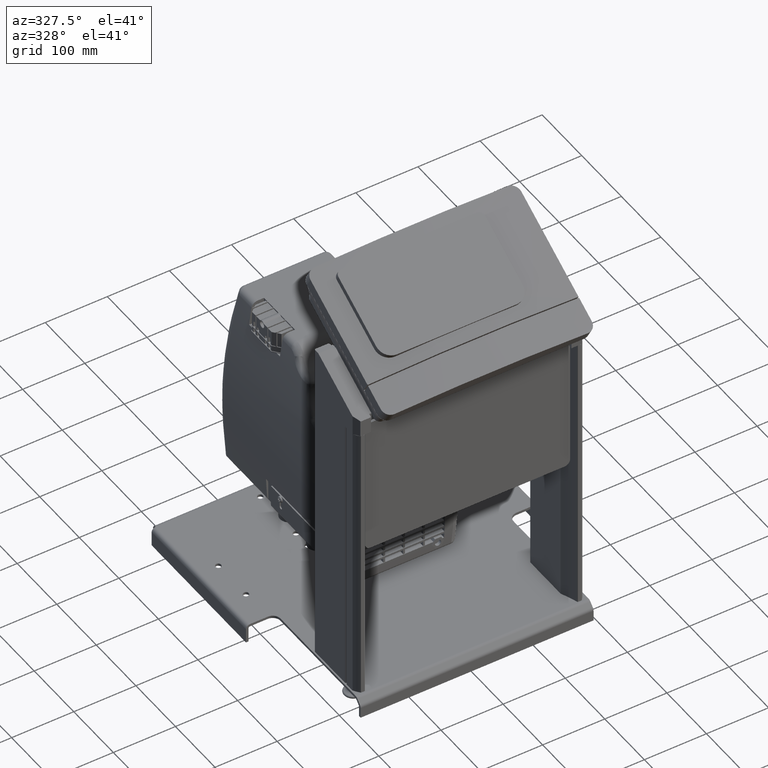
[diagram: clean part render]
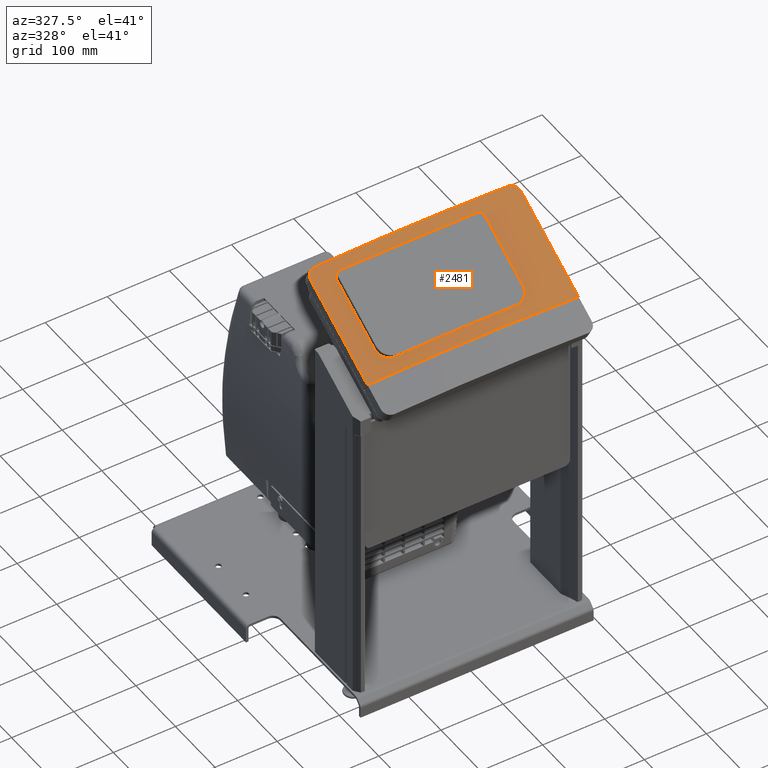
[diagram: same view with one face highlighted and labeled with its STEP entity id]
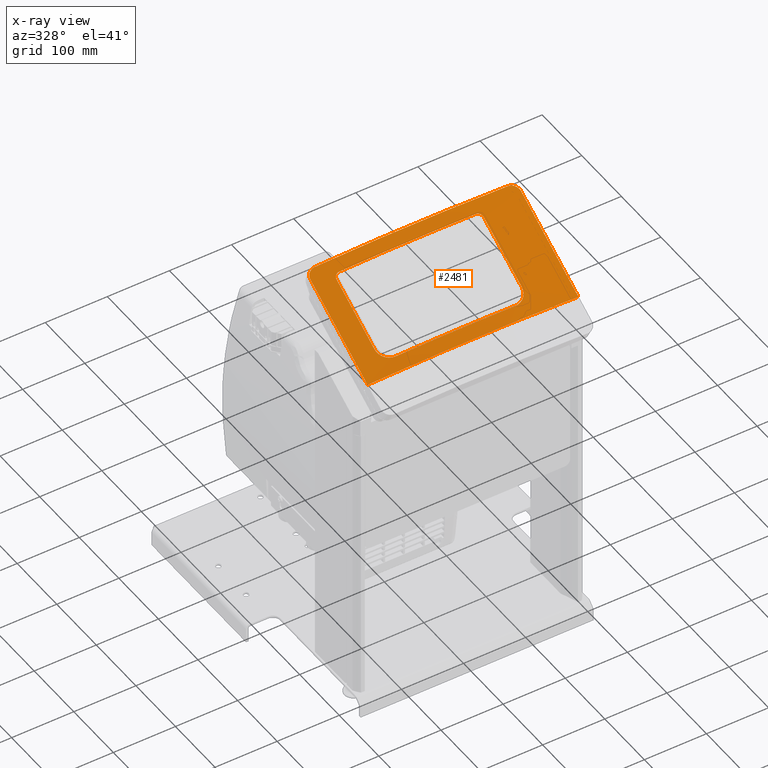
[diagram: x-ray of the same camera — body ghosted, the highlighted face saturated]
A machine part, auxiliary view. The second image highlights one B-rep face of the part: STEP entity #2481.
The next image is the same camera in x-ray: the body ghosted, the highlighted face saturated — about 0% of this face is hidden behind the body in this view.
In plain terms, the highlighted cylindrical surface (partial cylindrical patch) has radius 1496.25 mm, axis along (-0, 0.866, 0.5).
Its self-contained STEP definition (entity closure, byte-faithful):
#469=CARTESIAN_POINT('',(169.59679700803196,-223.95634935861835,582.03447660238101));
#470=VERTEX_POINT('',#469);
#479=CARTESIAN_POINT('',(-169.7866375998517,-223.95634935861813,582.03447660238055));
#480=VERTEX_POINT('',#479);
#481=CARTESIAN_POINT('',(-0.094920295907793,519.34122632166691,-705.39468961864361));
#482=DIRECTION('',(-6.162976E-032,0.866025403784438,0.500000000000001));
#483=DIRECTION('',(-1.224606E-016,-0.500000000000001,0.866025403784438));
#484=AXIS2_PLACEMENT_3D('',#481,#482,#483);
#485=CIRCLE('',#484,1496.2487837824006);
#486=EDGE_CURVE('',#480,#470,#485,.T.);
#581=CARTESIAN_POINT('',(-169.78663759984795,-79.76311962850923,665.28447660238078));
#582=VERTEX_POINT('',#581);
#583=CARTESIAN_POINT('',(-169.78663759984795,-223.95634935861835,582.03447660238089));
#584=DIRECTION('',(0.0,0.866025403784438,0.500000000000001));
#585=VECTOR('',#584,166.50000000000009);
#586=LINE('',#583,#585);
#587=EDGE_CURVE('',#480,#582,#586,.T.);
#645=CARTESIAN_POINT('',(169.59679700803196,-77.35979640391156,666.67203591305213));
#646=VERTEX_POINT('',#645);
#654=CARTESIAN_POINT('',(169.59679700803196,-223.95634935861835,582.03447660238101));
#655=DIRECTION('',(0.0,0.866025403784438,0.500000000000001));
#656=VECTOR('',#655,169.27511862134239);
#657=LINE('',#654,#656);
#658=EDGE_CURVE('',#470,#646,#657,.T.);
#2060=CARTESIAN_POINT('',(77.713362400148128,-210.01740882417971,598.89152339305167));
#2061=VERTEX_POINT('',#2060);
#2068=CARTESIAN_POINT('',(99.213362400148128,-190.76046984910545,608.53752668996935));
#2069=VERTEX_POINT('',#2068);
#2070=CARTESIAN_POINT('',(98.812246943362254,-187.19393670015143,610.6274121761071));
#2071=CARTESIAN_POINT('',(99.084207841762748,-188.38708963137287,609.91774082407983));
#2072=CARTESIAN_POINT('',(99.213362400148128,-189.59154548699007,609.212405485099));
#2073=CARTESIAN_POINT('',(99.213362400148128,-191.92939421122082,607.86264789483971));
#2074=CARTESIAN_POINT('',(99.084207841762748,-193.14246046077369,607.17222619562847));
#2075=CARTESIAN_POINT('',(98.540286044961761,-195.56480023038284,605.81529604958121));
#2076=CARTESIAN_POINT('',(98.125635538942845,-196.77408812742851,605.14876647876122));
#2077=CARTESIAN_POINT('',(97.029202699376299,-199.10285020829679,603.88707720962054));
#2078=CARTESIAN_POINT('',(96.346545752531426,-200.22417915568849,603.29089721205241));
#2079=CARTESIAN_POINT('',(94.769239446630706,-202.30723472493401,602.20491704650362));
#2080=CARTESIAN_POINT('',(93.874493145934537,-203.26889829462016,601.71513673977972));
#2081=CARTESIAN_POINT('',(91.966465503616348,-204.98184332287838,600.86339770408097));
#2082=CARTESIAN_POINT('',(90.887665986451282,-205.79140285739322,600.47251853205398));
#2083=CARTESIAN_POINT('',(88.538623838777937,-207.23040850769712,599.80480878309061));
#2084=CARTESIAN_POINT('',(87.268447371040509,-207.8599301783629,599.52790827831541));
#2085=CARTESIAN_POINT('',(84.619041693535848,-208.88698794317679,599.11114471517351));
#2086=CARTESIAN_POINT('',(83.237709997436639,-209.28533216887763,598.97093949776024));
#2087=CARTESIAN_POINT('',(80.460033462784907,-209.8330160854739,598.83065418054309));
#2088=CARTESIAN_POINT('',(79.063665325778572,-209.9822518698561,598.83062976192332));
#2089=CARTESIAN_POINT('',(76.36384498362446,-210.05254532671734,598.95238160064616));
#2090=CARTESIAN_POINT('',(74.96806422261119,-209.97613590003903,599.07824952615329));
#2091=CARTESIAN_POINT('',(73.579628156265642,-209.77477955619315,599.27354068439183));
#2092=B_SPLINE_CURVE_WITH_KNOTS('',3,(#2070,#2071,#2072,#2073,#2074,#2075,#2076,#2077,#2078,#2079,#2080,#2081,#2082,#2083,#2084,#2085,#2086,#2087,#2088,#2089,#2090,#2091),.UNSPECIFIED.,.F.,.U.,(4,2,2,2,2,2,2,2,2,2,4),(60.785706852603717,64.834979623381713,68.884252394159702,72.933525164937691,76.982797935715681,81.03207070649367,85.088467917127417,89.144865127761165,93.201262338394912,97.257659549028659,101.31169703956661),.UNSPECIFIED.);
#2093=EDGE_CURVE('',#2061,#2069,#2092,.F.);
#2110=CARTESIAN_POINT('',(99.213362400148128,-95.497675432817232,663.53752668996947));
#2111=VERTEX_POINT('',#2110);
#2112=CARTESIAN_POINT('',(99.213362400148128,-95.497675432817118,663.53752668996935));
#2113=DIRECTION('',(0.0,-0.866025403784438,-0.500000000000001));
#2114=VECTOR('',#2113,110.00000000000007);
#2115=LINE('',#2112,#2114);
#2116=EDGE_CURVE('',#2111,#2069,#2115,.T.);
#2151=CARTESIAN_POINT('',(-136.78663759985176,-189.28164586785215,605.97612841898763));
#2152=VERTEX_POINT('',#2151);
#2159=CARTESIAN_POINT('',(-115.28663759985182,-208.80928346280871,596.79898888524451));
#2160=VERTEX_POINT('',#2159);
#2161=CARTESIAN_POINT('',(-111.1527510983322,-208.61858852245132,597.27101873310369));
#2162=CARTESIAN_POINT('',(-112.54136605546188,-208.80253175076064,597.04547626580506));
#2163=CARTESIAN_POINT('',(-113.93719563006493,-208.86138283871151,596.88922765135032));
#2164=CARTESIAN_POINT('',(-116.63724660156134,-208.75713903003407,596.70867207834647));
#2165=CARTESIAN_POINT('',(-118.0339490538604,-208.59028191912057,596.67828778588091));
#2166=CARTESIAN_POINT('',(-120.81237442085302,-208.0073803951891,596.75814552318298));
#2167=CARTESIAN_POINT('',(-122.19412081466015,-207.59144015757852,596.86833101978414));
#2168=CARTESIAN_POINT('',(-124.84445182347821,-206.53035828050224,597.22763875429075));
#2169=CARTESIAN_POINT('',(-126.1151323303319,-205.8843840169684,597.47705684895914));
#2170=CARTESIAN_POINT('',(-128.46523218609144,-204.41451007005344,598.09416404804153));
#2171=CARTESIAN_POINT('',(-129.54458477987134,-203.59053407361534,598.46192559814244));
#2172=CARTESIAN_POINT('',(-131.45184170946311,-201.85307975627666,599.2723705310907));
#2173=CARTESIAN_POINT('',(-132.34559389131738,-200.88075691562517,599.74236555538891));
#2174=CARTESIAN_POINT('',(-133.92140202504157,-198.77896513040241,600.79340418857248));
#2175=CARTESIAN_POINT('',(-134.60355324197144,-197.64955704246881,601.37442666143033));
#2176=CARTESIAN_POINT('',(-135.6993004563912,-195.3078587392688,602.61173203276383));
#2177=CARTESIAN_POINT('',(-136.11377209405458,-194.09369713494516,603.26901936951435));
#2178=CARTESIAN_POINT('',(-136.65749914711643,-191.66501842412163,604.61378990423202));
#2179=CARTESIAN_POINT('',(-136.78663759985176,-190.4504883190948,605.30129691512252));
#2180=CARTESIAN_POINT('',(-136.78663759985176,-189.28164586785215,605.97612841898763));
#2181=CARTESIAN_POINT('',(-136.78663759985176,-188.11280341660995,606.65095992285285));
#2182=CARTESIAN_POINT('',(-136.65749914711643,-186.91013982738559,607.35902034202149));
#2183=CARTESIAN_POINT('',(-136.3856356205855,-185.720667427016,608.07447643894386));
#2184=B_SPLINE_CURVE_WITH_KNOTS('',3,(#2161,#2162,#2163,#2164,#2165,#2166,#2167,#2168,#2169,#2170,#2171,#2172,#2173,#2174,#2175,#2176,#2177,#2178,#2179,#2180,#2181,#2182,#2183),.UNSPECIFIED.,.F.,.U.,(4,2,2,2,2,2,2,2,2,3,4),(-36.511885750281706,-32.45150903286995,-28.387620797843255,-24.323732562816559,-20.259844327789864,-16.195956092763168,-12.146967069572383,-8.097978046381584,-4.048989023190785,0.0,4.048989023190778),.UNSPECIFIED.);
#2185=EDGE_CURVE('',#2152,#2160,#2184,.F.);
#2209=CARTESIAN_POINT('',(-0.094920295907793,537.09474709924734,-695.14468961864452));
#2210=DIRECTION('',(5.546678E-032,-0.866025403784438,-0.500000000000001));
#2211=DIRECTION('',(-1.224606E-016,-0.500000000000001,0.866025403784438));
#2212=AXIS2_PLACEMENT_3D('',#2209,#2210,#2211);
#2213=CIRCLE('',#2212,1496.2487837824006);
#2214=EDGE_CURVE('',#2061,#2160,#2213,.T.);
#2234=CARTESIAN_POINT('',(90.713362400148128,-88.407014194235217,668.25614116548616));
#2235=VERTEX_POINT('',#2234);
#2236=CARTESIAN_POINT('',(89.078851287834539,-88.593638479456786,668.26211431228796));
#2237=CARTESIAN_POINT('',(89.627840907629832,-88.484086506653966,668.2875164730566));
#2238=CARTESIAN_POINT('',(90.179741664271489,-88.423236988499639,668.28423986939288));
#2239=CARTESIAN_POINT('',(91.24712656840137,-88.390787039431871,668.22803490890442));
#2240=CARTESIAN_POINT('',(91.799134586344678,-88.418099516711891,668.17316970425998));
#2241=CARTESIAN_POINT('',(92.897260720210568,-88.570501861983757,668.00668863022156));
#2242=CARTESIAN_POINT('',(93.443387909868022,-88.69555180531097,667.8950960670677));
#2243=CARTESIAN_POINT('',(94.490913390646426,-89.038460369535869,667.62092655881349));
#2244=CARTESIAN_POINT('',(94.993142704063132,-89.256592299266231,667.45813378751598));
#2245=CARTESIAN_POINT('',(95.921985342321648,-89.767966021229768,667.09425838383004));
#2246=CARTESIAN_POINT('',(96.348572234587266,-90.06124454270298,666.89315989777083));
#2247=CARTESIAN_POINT('',(97.102915768552464,-90.690585406300215,666.4733270376372));
#2248=CARTESIAN_POINT('',(97.456597375653416,-91.048009255699071,666.24031633305856));
#2249=CARTESIAN_POINT('',(98.080096392204439,-91.831085542256233,665.74101681162369));
#2250=CARTESIAN_POINT('',(98.34995193982553,-92.256716166014712,665.47474140972804));
#2251=CARTESIAN_POINT('',(98.783376035368804,-93.148842000661034,664.92659937102349));
#2252=CARTESIAN_POINT('',(98.947290454607526,-93.616051464795191,664.64429639285197));
#2253=CARTESIAN_POINT('',(99.162306676631658,-94.55940936161528,664.08315985305728));
#2254=CARTESIAN_POINT('',(99.213362400148128,-95.035567445455172,663.80432486086772));
#2255=CARTESIAN_POINT('',(99.213362400148128,-95.497675432817232,663.53752668996947));
#2256=CARTESIAN_POINT('',(99.213362400148128,-95.959783420179519,663.27072851907144));
#2257=CARTESIAN_POINT('',(99.162306676631658,-96.439340648799543,662.99778101834329));
#2258=CARTESIAN_POINT('',(99.054798565619592,-96.918159372231457,662.72957920153874));
#2259=B_SPLINE_CURVE_WITH_KNOTS('',3,(#2236,#2237,#2238,#2239,#2240,#2241,#2242,#2243,#2244,#2245,#2246,#2247,#2248,#2249,#2250,#2251,#2252,#2253,#2254,#2255,#2256,#2257,#2258),.UNSPECIFIED.,.F.,.U.,(4,2,2,2,2,2,2,2,2,3,4),(-14.423973705738184,-12.820155058336674,-11.215905319141562,-9.611655579946458,-8.007405840751353,-6.403156101556242,-4.80236707616718,-3.201578050778117,-1.600789025389055,0.0,1.600789025389067),.UNSPECIFIED.);
#2260=EDGE_CURVE('',#2111,#2235,#2259,.F.);
#2277=CARTESIAN_POINT('',(-128.28663759985176,-87.035311845912474,665.88028300532983));
#2278=VERTEX_POINT('',#2277);
#2279=CARTESIAN_POINT('',(-0.094920295907793,658.33830362906917,-625.14468961864407));
#2280=DIRECTION('',(-5.546678E-032,0.866025403784438,0.500000000000001));
#2281=DIRECTION('',(-1.224606E-016,-0.500000000000001,0.866025403784438));
#2282=AXIS2_PLACEMENT_3D('',#2279,#2280,#2281);
#2283=CIRCLE('',#2282,1496.2487837824006);
#2284=EDGE_CURVE('',#2278,#2235,#2283,.T.);
#2318=CARTESIAN_POINT('',(-136.78663759985176,-94.01885145156416,660.97612841898774));
#2319=VERTEX_POINT('',#2318);
#2320=CARTESIAN_POINT('',(-136.62812488828706,-95.441106638363863,660.17177077381928));
#2321=CARTESIAN_POINT('',(-136.73559025644931,-94.961044291775579,660.4375641767466));
#2322=CARTESIAN_POINT('',(-136.78663759985176,-94.48091772721682,660.70935433035618));
#2323=CARTESIAN_POINT('',(-136.78663759985176,-94.01885145156416,660.97612841898774));
#2324=CARTESIAN_POINT('',(-136.78663759985176,-93.556785175911273,661.24290250761953));
#2325=CARTESIAN_POINT('',(-136.73559025644732,-93.081344716108106,661.52280923275407));
#2326=CARTESIAN_POINT('',(-136.5206595201268,-92.140914691332,662.08850820491875));
#2327=CARTESIAN_POINT('',(-136.3568222703766,-91.675914844016461,662.37430088893359));
#2328=CARTESIAN_POINT('',(-135.92368788702998,-90.78959800138864,662.93168021836027));
#2329=CARTESIAN_POINT('',(-135.65404443809359,-90.367568907275654,663.20371206251411));
#2330=CARTESIAN_POINT('',(-135.03117099178451,-89.592771045791778,663.71632130240562));
#2331=CARTESIAN_POINT('',(-134.67790359540516,-89.240024127787592,663.95688627832556));
#2332=CARTESIAN_POINT('',(-133.92385755957326,-88.61994691529253,664.3933017129209));
#2333=CARTESIAN_POINT('',(-133.4970145348974,-88.331707414473385,664.60393595825542));
#2334=CARTESIAN_POINT('',(-132.56768721444649,-87.831529450629887,664.98843379064544));
#2335=CARTESIAN_POINT('',(-132.06522970256719,-87.619553233686929,665.16231299997685));
#2336=CARTESIAN_POINT('',(-131.01730275863667,-87.289604223398328,665.45952464069228));
#2337=CARTESIAN_POINT('',(-130.47100489481892,-87.171369000023333,665.58309052918719));
#2338=CARTESIAN_POINT('',(-129.37259975168587,-87.032726194571296,665.77360329818157));
#2339=CARTESIAN_POINT('',(-128.82048339505138,-87.012358722860426,665.8405270300118));
#2340=CARTESIAN_POINT('',(-127.75299509951634,-87.058256228140408,665.92002384109708));
#2341=CARTESIAN_POINT('',(-127.20103081241524,-87.126061515914444,665.93534129645855));
#2342=CARTESIAN_POINT('',(-126.65193237641279,-87.242560588075776,665.92190268163392));
#2343=B_SPLINE_CURVE_WITH_KNOTS('',3,(#2320,#2321,#2322,#2323,#2324,#2325,#2326,#2327,#2328,#2329,#2330,#2331,#2332,#2333,#2334,#2335,#2336,#2337,#2338,#2339,#2340,#2341,#2342),.UNSPECIFIED.,.F.,.U.,(4,3,2,2,2,2,2,2,2,2,4),(-1.600644531789563,0.0,1.600644531789566,3.201289063579132,4.801933595368698,6.402578127158265,8.010025932952518,9.617473738746771,11.224921544541022,12.832369350335275,14.439205020778179),.UNSPECIFIED.);
#2344=EDGE_CURVE('',#2278,#2319,#2343,.F.);
#2368=CARTESIAN_POINT('',(-136.78663759985176,-189.28164586785209,605.97612841898751));
#2369=DIRECTION('',(0.0,0.866025403784438,0.500000000000001));
#2370=VECTOR('',#2369,109.99999999999987);
#2371=LINE('',#2368,#2370);
#2372=EDGE_CURVE('',#2152,#2319,#2371,.T.);
#2400=CARTESIAN_POINT('',(-155.7866375998517,-68.404443693139001,673.61067277561006));
#2401=VERTEX_POINT('',#2400);
#2402=CARTESIAN_POINT('',(-169.7866375998517,-79.763119628508775,665.28447660238032));
#2403=CARTESIAN_POINT('',(-169.7866375998517,-79.002121011907548,665.72383935852793));
#2404=CARTESIAN_POINT('',(-169.70256960766977,-78.220099448994233,666.18642997365976));
#2405=CARTESIAN_POINT('',(-169.34870348022014,-76.675466848068481,667.12479325616266));
#2406=CARTESIAN_POINT('',(-169.07898155079522,-75.912837608583004,667.60056469857318));
#2407=CARTESIAN_POINT('',(-168.36607928146668,-74.461508319852783,668.53185846502254));
#2408=CARTESIAN_POINT('',(-167.92232782217934,-73.771636410546307,668.98812547963189));
#2409=CARTESIAN_POINT('',(-166.89750871347042,-72.507392184678338,669.85119914601512));
#2410=CARTESIAN_POINT('',(-166.31638065725491,-71.933053862670477,670.25798386462134));
#2411=CARTESIAN_POINT('',(-165.07499976134199,-70.924599463075538,670.99984530395648));
#2412=CARTESIAN_POINT('',(-164.37157940176371,-70.456709600518934,671.359974168848));
#2413=CARTESIAN_POINT('',(-162.84018349606697,-69.647908691551947,672.0213411803079));
#2414=CARTESIAN_POINT('',(-162.01225240017152,-69.306932167847663,672.32260217515579));
#2415=CARTESIAN_POINT('',(-160.28559308862913,-68.780377385437305,672.84246977894861));
#2416=CARTESIAN_POINT('',(-159.38550523519621,-68.594380545320973,673.06148144976339));
#2417=CARTESIAN_POINT('',(-157.57579986238557,-68.383375855538361,673.40575712386863));
#2418=CARTESIAN_POINT('',(-156.66616721144896,-68.358434340219446,673.53098223872939));
#2419=CARTESIAN_POINT('',(-155.7866375998517,-68.404443693139001,673.61067277561006));
#2420=B_SPLINE_CURVE_WITH_KNOTS('',3,(#2402,#2403,#2404,#2405,#2406,#2407,#2408,#2409,#2410,#2411,#2412,#2413,#2414,#2415,#2416,#2417,#2418,#2419),.UNSPECIFIED.,.F.,.U.,(4,2,2,2,2,2,2,2,4),(84.608812298877979,87.24498883576446,89.881165372650955,92.517341909537436,95.153518446423931,97.806508838247396,100.45949923007085,103.11248962189431,105.76548001371778),.UNSPECIFIED.);
#2421=EDGE_CURVE('',#582,#2401,#2420,.T.);
#2432=CARTESIAN_POINT('',(-0.094920295907793,473.87489262298368,-731.64468961864384));
#2433=DIRECTION('',(-6.118138E-032,0.866025403784438,0.500000000000001));
#2434=DIRECTION('',(-1.224606E-016,-0.500000000000001,0.866025403784438));
#2435=AXIS2_PLACEMENT_3D('',#2432,#2433,#2434);
#2436=CYLINDRICAL_SURFACE('',#2435,1496.2487837824006);
#2437=ORIENTED_EDGE('',*,*,#486,.T.);
#2438=ORIENTED_EDGE('',*,*,#658,.T.);
#2439=CARTESIAN_POINT('',(155.87459905590066,-68.389898394836564,673.58547957993881));
#2440=VERTEX_POINT('',#2439);
#2441=CARTESIAN_POINT('',(155.87459905590066,-68.389898394836564,673.58547957993881));
#2442=CARTESIAN_POINT('',(156.75413019155661,-68.343805966135278,673.50564515158351));
#2443=CARTESIAN_POINT('',(157.66376480887226,-68.368661755369885,673.38027100376064));
#2444=CARTESIAN_POINT('',(159.47347515887878,-68.579496860631252,673.03569801287608));
#2445=CARTESIAN_POINT('',(160.37356602331721,-68.765409839249742,672.81653805667361));
#2446=CARTESIAN_POINT('',(162.10023237985178,-69.291805671123029,672.29638460572232));
#2447=CARTESIAN_POINT('',(162.92816746373586,-69.63270697014741,671.99498583673687));
#2448=CARTESIAN_POINT('',(164.4595718331862,-70.441372019883374,671.33336186132465));
#2449=CARTESIAN_POINT('',(165.16299666266622,-70.909201264373223,670.97311380805615));
#2450=CARTESIAN_POINT('',(166.40437228641275,-71.917542622269821,670.23104716163607));
#2451=CARTESIAN_POINT('',(166.98549304216561,-72.491822202982803,669.82417034848174));
#2452=CARTESIAN_POINT('',(168.0103011232838,-73.755962221030586,668.96093436521403));
#2453=CARTESIAN_POINT('',(168.45404884244289,-74.445788666367207,668.50459711578515));
#2454=CARTESIAN_POINT('',(169.15584201938276,-75.874439916745132,667.58769809563898));
#2455=CARTESIAN_POINT('',(169.41984751202693,-76.612152336715553,667.12701153566536));
#2456=CARTESIAN_POINT('',(169.59679700803196,-77.35979640391156,666.67203591305213));
#2457=B_SPLINE_CURVE_WITH_KNOTS('',3,(#2441,#2442,#2443,#2444,#2445,#2446,#2447,#2448,#2449,#2450,#2451,#2452,#2453,#2454,#2455,#2456),.UNSPECIFIED.,.F.,.U.,(4,2,2,2,2,2,2,4),(63.452759231844624,66.105806083806357,68.758852935768104,71.411899787729851,74.064946639691584,76.701120691516721,79.337294743341857,81.891347429254211),.UNSPECIFIED.);
#2458=EDGE_CURVE('',#2440,#646,#2457,.T.);
#2459=ORIENTED_EDGE('',*,*,#2458,.F.);
#2460=CARTESIAN_POINT('',(-0.094920295907793,675.65881170475802,-615.14468961864407));
#2461=DIRECTION('',(5.546678E-032,-0.866025403784438,-0.500000000000001));
#2462=DIRECTION('',(-1.224606E-016,-0.500000000000001,0.866025403784438));
#2463=AXIS2_PLACEMENT_3D('',#2460,#2461,#2462);
#2464=CIRCLE('',#2463,1496.2487837824006);
#2465=EDGE_CURVE('',#2440,#2401,#2464,.T.);
#2466=ORIENTED_EDGE('',*,*,#2465,.T.);
#2467=ORIENTED_EDGE('',*,*,#2421,.F.);
#2468=ORIENTED_EDGE('',*,*,#587,.F.);
#2469=EDGE_LOOP('',(#2437,#2438,#2459,#2466,#2467,#2468));
#2470=FACE_OUTER_BOUND('',#2469,.T.);
#2471=ORIENTED_EDGE('',*,*,#2284,.T.);
#2472=ORIENTED_EDGE('',*,*,#2260,.F.);
#2473=ORIENTED_EDGE('',*,*,#2116,.T.);
#2474=ORIENTED_EDGE('',*,*,#2093,.F.);
#2475=ORIENTED_EDGE('',*,*,#2214,.T.);
#2476=ORIENTED_EDGE('',*,*,#2185,.F.);
#2477=ORIENTED_EDGE('',*,*,#2372,.T.);
#2478=ORIENTED_EDGE('',*,*,#2344,.F.);
#2479=EDGE_LOOP('',(#2471,#2472,#2473,#2474,#2475,#2476,#2477,#2478));
#2480=FACE_BOUND('',#2479,.T.);
#2481=ADVANCED_FACE('',(#2470,#2480),#2436,.T.);